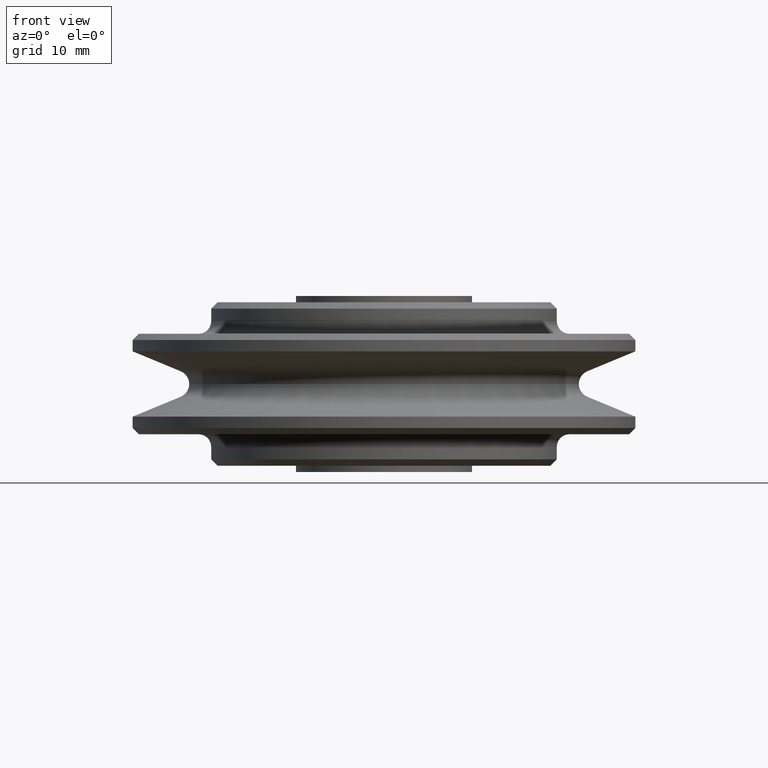
[diagram: clean part render]
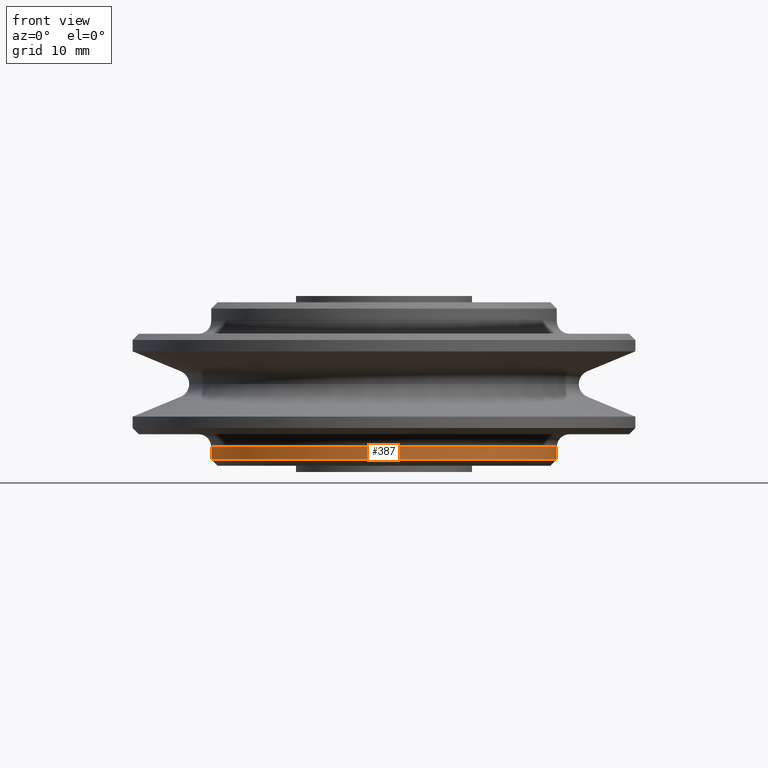
[diagram: same view with one face highlighted and labeled with its STEP entity id]
A machine part, front view. The second image highlights one B-rep face of the part: STEP entity #387.
In plain terms, the highlighted cylindrical surface (partial cylindrical patch) has radius 27.5 mm, axis along (0, 0, 1).
Its self-contained STEP definition (entity closure, byte-faithful):
#387=ADVANCED_FACE('',(#798),#799,.T.);
#798=FACE_OUTER_BOUND('',#1208,.T.);
#799=CYLINDRICAL_SURFACE('',#1209,27.5);
#1208=EDGE_LOOP('',(#2499,#2500,#2501,#2502));
#1209=AXIS2_PLACEMENT_3D('',#2503,#2504,#2505);
#2499=ORIENTED_EDGE('',*,*,#2678,.T.);
#2500=ORIENTED_EDGE('',*,*,#2674,.F.);
#2501=ORIENTED_EDGE('',*,*,#2680,.T.);
#2502=ORIENTED_EDGE('',*,*,#3088,.T.);
#2503=CARTESIAN_POINT('',(0.0,0.0,-11.0));
#2504=DIRECTION('',(0.0,0.0,1.0));
#2505=DIRECTION('',(1.0,0.0,0.0));
#2674=EDGE_CURVE('',#3290,#3293,#3294,.T.);
#2678=EDGE_CURVE('',#3299,#3293,#3300,.T.);
#2680=EDGE_CURVE('',#3290,#3301,#3303,.T.);
#3088=EDGE_CURVE('',#3301,#3299,#3905,.T.);
#3290=VERTEX_POINT('',#4947);
#3293=VERTEX_POINT('',#4950);
#3294=CIRCLE('',#4951,27.5);
#3299=VERTEX_POINT('',#4956);
#3300=LINE('',#4957,#4958);
#3301=VERTEX_POINT('',#4959);
#3303=LINE('',#4961,#4962);
#3905=CIRCLE('',#8080,27.5);
#4947=CARTESIAN_POINT('',(-27.5,3.36777869765522E-015,-10.0));
#4950=CARTESIAN_POINT('',(27.5,0.0,-10.0));
#4951=AXIS2_PLACEMENT_3D('',#8243,#8244,#8245);
#4956=CARTESIAN_POINT('',(27.5,0.0,-12.0));
#4957=CARTESIAN_POINT('',(27.5,-3.36777869765522E-015,-11.0));
#4958=VECTOR('',#8252,1.0);
#4959=CARTESIAN_POINT('',(-27.5,3.36777869765522E-015,-12.0));
#4961=CARTESIAN_POINT('',(-27.5,3.36777869765522E-015,-11.0));
#4962=VECTOR('',#8256,1.0);
#8080=AXIS2_PLACEMENT_3D('',#8695,#8696,#8697);
#8243=CARTESIAN_POINT('',(0.0,0.0,-10.0));
#8244=DIRECTION('',(0.0,0.0,1.0));
#8245=DIRECTION('',(1.0,0.0,0.0));
#8252=DIRECTION('',(0.0,0.0,1.0));
#8256=DIRECTION('',(-0.0,-0.0,-1.0));
#8695=CARTESIAN_POINT('',(0.0,0.0,-12.0));
#8696=DIRECTION('',(0.0,0.0,1.0));
#8697=DIRECTION('',(1.0,0.0,0.0));